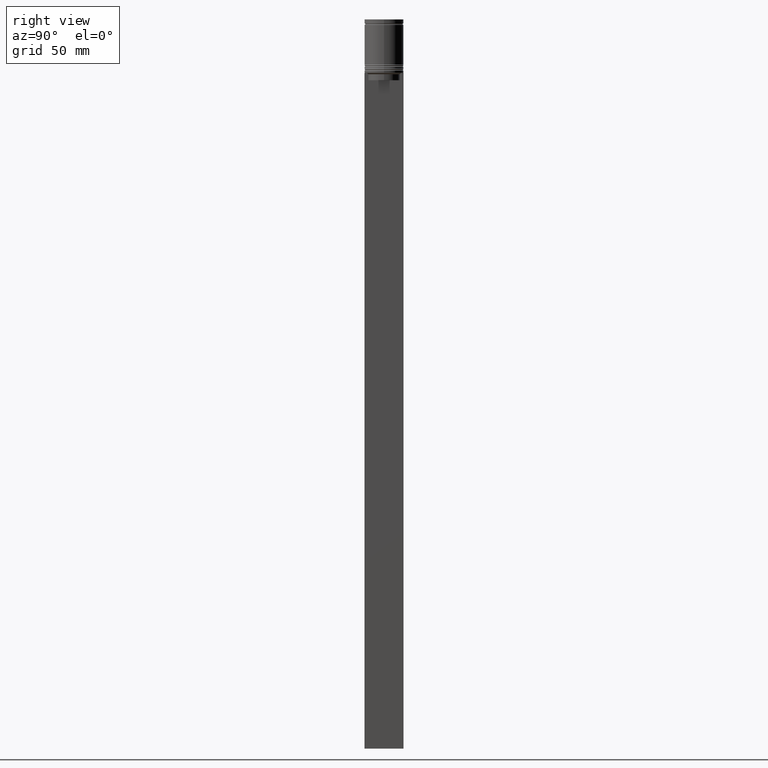
[diagram: clean part render]
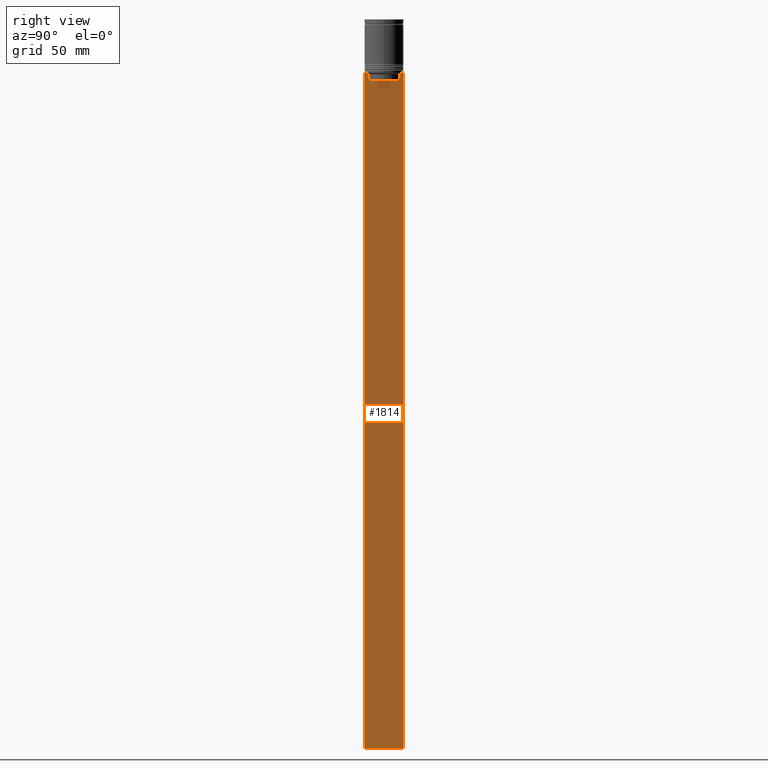
[diagram: same view with one face highlighted and labeled with its STEP entity id]
A machine part, right view. The second image highlights one B-rep face of the part: STEP entity #1814.
In plain terms, the highlighted planar face has unit normal (-1, 0, 0).
Its self-contained STEP definition (entity closure, byte-faithful):
#32 = CARTESIAN_POINT ( 'NONE',  ( 0.5000000000000001110, 6.380438856379714530, -22.50000000000000000 ) ) ;
#47 = VECTOR ( 'NONE', #1225, 1000.000000000000000 ) ;
#153 = CARTESIAN_POINT ( 'NONE',  ( 0.5000000000000001110, 6.380438856379714530, 0.000000000000000000 ) ) ;
#164 = ORIENTED_EDGE ( 'NONE', *, *, #1228, .T. ) ;
#195 = DIRECTION ( 'NONE',  ( 0.000000000000000000, -1.000000000000000000, 0.000000000000000000 ) ) ;
#210 = EDGE_CURVE ( 'NONE', #336, #1339, #539, .T. ) ;
#211 = CARTESIAN_POINT ( 'NONE',  ( 0.5000000000000001110, -6.380438856379714530, -24.99999999999999645 ) ) ;
#215 = CARTESIAN_POINT ( 'NONE',  ( 0.5000000000000001110, 7.999999999999996447, -5.968780458118602361 ) ) ;
#217 = CARTESIAN_POINT ( 'NONE',  ( 0.5000000000000001110, -7.884161337770813738, -22.00000000000000000 ) ) ;
#247 = FACE_OUTER_BOUND ( 'NONE', #1892, .T. ) ;
#263 = EDGE_CURVE ( 'NONE', #1437, #799, #1305, .T. ) ;
#268 = CARTESIAN_POINT ( 'NONE',  ( 0.5000000000000001110, -6.881860213634107382, -22.00000000000000000 ) ) ;
#303 = VECTOR ( 'NONE', #692, 1000.000000000000000 ) ;
#336 = VERTEX_POINT ( 'NONE', #1475 ) ;
#359 = CARTESIAN_POINT ( 'NONE',  ( 0.5000000000000001110, -8.000000000000003553, -22.00000000000000000 ) ) ;
#360 = EDGE_CURVE ( 'NONE', #2012, #1696, #1483, .T. ) ;
#379 = CARTESIAN_POINT ( 'NONE',  ( 0.5000000000000001110, 6.380438856379714530, -22.50000000000000000 ) ) ;
#394 = CARTESIAN_POINT ( 'NONE',  ( 0.5000000000000001110, 7.999999999999996447, -299.0000000000000568 ) ) ;
#398 = CARTESIAN_POINT ( 'NONE',  ( 0.5000000000000001110, -8.000000000000003553, -22.00000000000000000 ) ) ;
#416 = PLANE ( 'NONE',  #958 ) ;
#472 = CARTESIAN_POINT ( 'NONE',  ( 0.5000000000000001110, 6.714736947114698040, -22.16668390704818492 ) ) ;
#502 = EDGE_CURVE ( 'NONE', #1339, #833, #1341, .T. ) ;
#539 = B_SPLINE_CURVE_WITH_KNOTS ( 'NONE', 3,
 ( #1264, #2068, #1722, #268 ),
 .UNSPECIFIED., .F., .F.,
 ( 4, 4 ),
 ( 0.02996184199614752158, 0.03067452609193706617 ),
 .UNSPECIFIED. ) ;
#566 = DIRECTION ( 'NONE',  ( 0.000000000000000000, 0.000000000000000000, -1.000000000000000000 ) ) ;
#580 = CARTESIAN_POINT ( 'NONE',  ( 0.5000000000000001110, -6.380438856379714530, 0.000000000000000000 ) ) ;
#605 = DIRECTION ( 'NONE',  ( 0.000000000000000000, 0.000000000000000000, 1.000000000000000000 ) ) ;
#616 = ORIENTED_EDGE ( 'NONE', *, *, #502, .T. ) ;
#674 = CARTESIAN_POINT ( 'NONE',  ( 0.5000000000000001110, -8.000000000000003553, -299.0000000000000568 ) ) ;
#692 = DIRECTION ( 'NONE',  ( 0.000000000000000000, -1.000000000000000000, 0.000000000000000000 ) ) ;
#742 = CARTESIAN_POINT ( 'NONE',  ( 0.5000000000000001110, 6.400000000000006573, -24.99999999999999645 ) ) ;
#744 = ORIENTED_EDGE ( 'NONE', *, *, #1684, .T. ) ;
#761 = VERTEX_POINT ( 'NONE', #359 ) ;
#799 = VERTEX_POINT ( 'NONE', #379 ) ;
#820 = ORIENTED_EDGE ( 'NONE', *, *, #1735, .T. ) ;
#833 = VERTEX_POINT ( 'NONE', #217 ) ;
#836 = ORIENTED_EDGE ( 'NONE', *, *, #854, .T. ) ;
#854 = EDGE_CURVE ( 'NONE', #1696, #336, #2017, .T. ) ;
#859 = VECTOR ( 'NONE', #1706, 1000.000000000000000 ) ;
#871 = EDGE_CURVE ( 'NONE', #1267, #1437, #1041, .T. ) ;
#887 = CARTESIAN_POINT ( 'NONE',  ( 0.5000000000000001110, -8.000000000000003553, -5.968780458118602361 ) ) ;
#908 = ORIENTED_EDGE ( 'NONE', *, *, #1283, .F. ) ;
#958 = AXIS2_PLACEMENT_3D ( 'NONE', #2020, #2045, #605 ) ;
#966 = EDGE_CURVE ( 'NONE', #799, #2012, #2072, .T. ) ;
#975 = CARTESIAN_POINT ( 'NONE',  ( 0.5000000000000001110, 6.380438856379714530, -24.99999999999999645 ) ) ;
#980 = ORIENTED_EDGE ( 'NONE', *, *, #966, .T. ) ;
#981 = DIRECTION ( 'NONE',  ( 0.000000000000000000, 1.000000000000000000, 0.000000000000000000 ) ) ;
#1029 = ORIENTED_EDGE ( 'NONE', *, *, #360, .T. ) ;
#1041 = LINE ( 'NONE', #398, #47 ) ;
#1055 = CARTESIAN_POINT ( 'NONE',  ( 0.5000000000000001110, 7.884161337770813738, -22.00000000000000000 ) ) ;
#1079 = DIRECTION ( 'NONE',  ( 0.000000000000000000, 0.000000000000000000, -1.000000000000000000 ) ) ;
#1119 = CARTESIAN_POINT ( 'NONE',  ( 0.5000000000000001110, 6.547597841304916955, -22.33335192459222185 ) ) ;
#1163 = CARTESIAN_POINT ( 'NONE',  ( 0.5000000000000001110, -8.000000000000003553, -22.00000000000000000 ) ) ;
#1223 = ORIENTED_EDGE ( 'NONE', *, *, #263, .T. ) ;
#1225 = DIRECTION ( 'NONE',  ( 0.000000000000000000, -1.000000000000000000, 0.000000000000000000 ) ) ;
#1228 = EDGE_CURVE ( 'NONE', #1855, #1762, #1328, .T. ) ;
#1262 = CARTESIAN_POINT ( 'NONE',  ( 0.5000000000000001110, -8.000000000000003553, -299.0000000000000568 ) ) ;
#1264 = CARTESIAN_POINT ( 'NONE',  ( 0.5000000000000001110, -6.380438856379714530, -22.50000000000000000 ) ) ;
#1267 = VERTEX_POINT ( 'NONE', #1055 ) ;
#1283 = EDGE_CURVE ( 'NONE', #1974, #1762, #1344, .T. ) ;
#1289 = CARTESIAN_POINT ( 'NONE',  ( 0.5000000000000001110, 7.999999999999996447, -22.00000000000000000 ) ) ;
#1305 = B_SPLINE_CURVE_WITH_KNOTS ( 'NONE', 3,
 ( #2079, #472, #1119, #32 ),
 .UNSPECIFIED., .F., .F.,
 ( 4, 4 ),
 ( 0.01172465562756039650, 0.01243276816391824212 ),
 .UNSPECIFIED. ) ;
#1311 = DIRECTION ( 'NONE',  ( 0.000000000000000000, -1.000000000000000000, 0.000000000000000000 ) ) ;
#1328 = LINE ( 'NONE', #674, #1462 ) ;
#1339 = VERTEX_POINT ( 'NONE', #1502 ) ;
#1341 = LINE ( 'NONE', #1993, #1697 ) ;
#1344 = LINE ( 'NONE', #215, #859 ) ;
#1392 = VECTOR ( 'NONE', #1311, 1000.000000000000000 ) ;
#1421 = VECTOR ( 'NONE', #1079, 1000.000000000000000 ) ;
#1437 = VERTEX_POINT ( 'NONE', #1595 ) ;
#1462 = VECTOR ( 'NONE', #981, 1000.000000000000000 ) ;
#1475 = CARTESIAN_POINT ( 'NONE',  ( 0.5000000000000001110, -6.380438856379714530, -22.50000000000000000 ) ) ;
#1483 = LINE ( 'NONE', #742, #303 ) ;
#1502 = CARTESIAN_POINT ( 'NONE',  ( 0.5000000000000001110, -6.881860213634107382, -22.00000000000000000 ) ) ;
#1536 = DIRECTION ( 'NONE',  ( -0.000000000000000000, -0.000000000000000000, 1.000000000000000000 ) ) ;
#1566 = EDGE_CURVE ( 'NONE', #833, #761, #1797, .T. ) ;
#1595 = CARTESIAN_POINT ( 'NONE',  ( 0.5000000000000001110, 6.881860213634107382, -22.00000000000000000 ) ) ;
#1636 = VECTOR ( 'NONE', #1536, 1000.000000000000000 ) ;
#1684 = EDGE_CURVE ( 'NONE', #1974, #1267, #1778, .T. ) ;
#1696 = VERTEX_POINT ( 'NONE', #211 ) ;
#1697 = VECTOR ( 'NONE', #1717, 1000.000000000000000 ) ;
#1706 = DIRECTION ( 'NONE',  ( 0.000000000000000000, 0.000000000000000000, -1.000000000000000000 ) ) ;
#1717 = DIRECTION ( 'NONE',  ( 0.000000000000000000, -1.000000000000000000, 0.000000000000000000 ) ) ;
#1722 = CARTESIAN_POINT ( 'NONE',  ( 0.5000000000000001110, -6.714736947306001014, -22.16668390685738643 ) ) ;
#1726 = ORIENTED_EDGE ( 'NONE', *, *, #210, .T. ) ;
#1735 = EDGE_CURVE ( 'NONE', #761, #1855, #2013, .T. ) ;
#1738 = VECTOR ( 'NONE', #566, 1000.000000000000000 ) ;
#1741 = ORIENTED_EDGE ( 'NONE', *, *, #871, .T. ) ;
#1762 = VERTEX_POINT ( 'NONE', #394 ) ;
#1778 = LINE ( 'NONE', #1163, #1392 ) ;
#1797 = LINE ( 'NONE', #1952, #2032 ) ;
#1814 = ADVANCED_FACE ( 'NONE', ( #247 ), #416, .F. ) ;
#1855 = VERTEX_POINT ( 'NONE', #1262 ) ;
#1892 = EDGE_LOOP ( 'NONE', ( #1741, #1223, #980, #1029, #836, #1726, #616, #1926, #820, #164, #908, #744 ) ) ;
#1926 = ORIENTED_EDGE ( 'NONE', *, *, #1566, .T. ) ;
#1952 = CARTESIAN_POINT ( 'NONE',  ( 0.5000000000000001110, -8.000000000000003553, -22.00000000000000000 ) ) ;
#1974 = VERTEX_POINT ( 'NONE', #1289 ) ;
#1993 = CARTESIAN_POINT ( 'NONE',  ( 0.5000000000000001110, -8.000000000000003553, -22.00000000000000000 ) ) ;
#2012 = VERTEX_POINT ( 'NONE', #975 ) ;
#2013 = LINE ( 'NONE', #887, #1738 ) ;
#2017 = LINE ( 'NONE', #580, #1636 ) ;
#2020 = CARTESIAN_POINT ( 'NONE',  ( 0.5000000000000001110, -8.000000000000003553, -5.968780458118602361 ) ) ;
#2032 = VECTOR ( 'NONE', #195, 1000.000000000000000 ) ;
#2045 = DIRECTION ( 'NONE',  ( -1.000000000000000000, 0.000000000000000000, 0.000000000000000000 ) ) ;
#2068 = CARTESIAN_POINT ( 'NONE',  ( 0.5000000000000001110, -6.547597841511252348, -22.33335192438651973 ) ) ;
#2072 = LINE ( 'NONE', #153, #1421 ) ;
#2079 = CARTESIAN_POINT ( 'NONE',  ( 0.5000000000000001110, 6.881860213634107382, -22.00000000000000000 ) ) ;